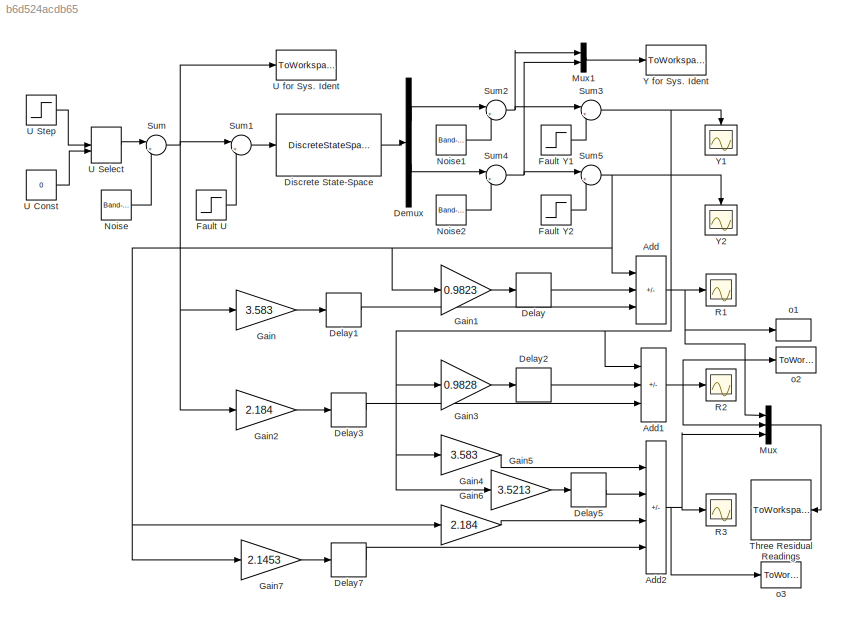
MODEL slx_b6d524acdb65
KIND model
CONFIG AbsTol = auto
CONFIG EnableMultiTasking = on
CONFIG FixedStep = 0.025
CONFIG MaxStep = auto
CONFIG MinStep = auto
CONFIG RelTol = 1e-3
CONFIG SampleTimeConstraint = Unconstrained
CONFIG SolverName = ode5
CONFIG StartTime = 0.0
CONFIG StopTime = 15
BLOCK [Sum] Add
  IconShape = rectangular
  Inputs = +--
BLOCK [Sum] Add1
  IconShape = rectangular
  Inputs = +--
BLOCK [Sum] Add2
  IconShape = rectangular
  Inputs = +--+
BLOCK [Delay] Delay
  DelayLength = 1
  InitialCondition = 0
  InputPortMap = u0
BLOCK [Delay] Delay1
  DelayLength = 1
  InitialCondition = 0
  InputPortMap = u0
BLOCK [Delay] Delay2
  DelayLength = 1
  InitialCondition = 0
  InputPortMap = u0
BLOCK [Delay] Delay3
  DelayLength = 1
  InitialCondition = 0
  InputPortMap = u0
BLOCK [Delay] Delay5
  DelayLength = 1
  InitialCondition = 0
  InputPortMap = u0
BLOCK [Delay] Delay7
  DelayLength = 1
  InitialCondition = 0
  InputPortMap = u0
BLOCK [Demux] Demux
  DisplayOption = none
  Outputs = 2
BLOCK [DiscreteStateSpace] Discrete State-Space
  A = [0.9769 0.0038;\n0.0936 0.9225]
  B = [2.1521;\n3.8186]
  C = [1 0; 0 1]
  D = [0;0]
  SampleTime = 0.025
BLOCK [Step] Fault U
  After = 0
  SampleTime = 0
  Time = 3
BLOCK [Step] Fault Y1
  After = 5
  SampleTime = 0
  Time = 3
BLOCK [Step] Fault Y2
  After = 5
  SampleTime = 0
  Time = 3
BLOCK [Gain] Gain
  Gain = 3.583
BLOCK [Gain] Gain1
  Gain = 0.9823
BLOCK [Gain] Gain2
  Gain = 2.184
BLOCK [Gain] Gain3
  Gain = 0.9828
BLOCK [Gain] Gain4
  Gain = 3.583
BLOCK [Gain] Gain5
  Gain = 3.5213
BLOCK [Gain] Gain6
  Gain = 2.184
BLOCK [Gain] Gain7
  Gain = 2.1453
BLOCK [Mux] Mux
  DisplayOption = bar
  Inputs = 3
BLOCK [Mux] Mux1
  DisplayOption = bar
  Inputs = 2
BLOCK [Reference] Noise  REF=simulink/Sources/Band-Limited
White Noise
  SourceBlock = simulink/Sources/Band-Limited\nWhite Noise
  SourceType = Band-Limited White Noise.
BLOCK [Reference] Noise1  REF=simulink/Sources/Band-Limited
White Noise
  SourceBlock = simulink/Sources/Band-Limited\nWhite Noise
  SourceType = Band-Limited White Noise.
BLOCK [Reference] Noise2  REF=simulink/Sources/Band-Limited
White Noise
  SourceBlock = simulink/Sources/Band-Limited\nWhite Noise
  SourceType = Band-Limited White Noise.
BLOCK [Scope] R1
  Floating = off
  NumInputPorts = 1
  ScopeSpecificationString = Simulink.scopes.TimeScopeBlockCfg('CurrentConfiguration', extmgr.ConfigurationSet(extmgr.Configuration('Core','General UI',true),extmgr.Configuration('Core','Source UI',true),extmgr.Configuration('Sources','WiredSimulink',true,'DataLoggingVariableName','ScopeData1','DataLoggingSaveFormat','StructureWithTime','DataLoggingDecimation','1','DataLoggingDecimateData',true),extmgr.Configuration('Visuals'...<+1730ch>
BLOCK [Scope] R2
  Floating = off
  NumInputPorts = 1
  ScopeSpecificationString = Simulink.scopes.TimeScopeBlockCfg('CurrentConfiguration', extmgr.ConfigurationSet(extmgr.Configuration('Core','General UI',true),extmgr.Configuration('Core','Source UI',true),extmgr.Configuration('Sources','WiredSimulink',true,'DataLoggingVariableName','ScopeData3','DataLoggingSaveFormat','StructureWithTime','DataLoggingDecimation','1','DataLoggingDecimateData',true),extmgr.Configuration('Visuals'...<+1740ch>
BLOCK [Scope] R3
  Floating = off
  NumInputPorts = 1
  ScopeSpecificationString = Simulink.scopes.TimeScopeBlockCfg('CurrentConfiguration', extmgr.ConfigurationSet(extmgr.Configuration('Core','General UI',true),extmgr.Configuration('Core','Source UI',true),extmgr.Configuration('Sources','WiredSimulink',true,'DataLoggingVariableName','ScopeData1','DataLoggingSaveFormat','StructureWithTime','DataLoggingDecimation','1','DataLoggingDecimateData',true),extmgr.Configuration('Visuals'...<+1737ch>
BLOCK [Sum] Sum
  Inputs = |++
  SaturateOnIntegerOverflow = on
BLOCK [Sum] Sum1
  Inputs = |++
  SaturateOnIntegerOverflow = on
BLOCK [Sum] Sum2
  Inputs = |++
  SaturateOnIntegerOverflow = on
BLOCK [Sum] Sum3
  Inputs = |++
  SaturateOnIntegerOverflow = on
BLOCK [Sum] Sum4
  Inputs = |++
  SaturateOnIntegerOverflow = on
BLOCK [Sum] Sum5
  Inputs = |++
  SaturateOnIntegerOverflow = on
BLOCK [ToWorkspace] Three Residual Readings
  MaxDataPoints = inf
  SampleTime = 0.025
  VariableName = Rout1
BLOCK [Constant] U Const
  Value = 0
BLOCK [ManualSwitch] U Select 
  NameLocation = top
BLOCK [Step] U Step
  SampleTime = 0
BLOCK [ToWorkspace] U for Sys. Ident
  MaxDataPoints = inf
  SampleTime = 0.025
  VariableName = Uout
BLOCK [ToWorkspace] Y for Sys. Ident
  MaxDataPoints = inf
  SampleTime = 0.025
  VariableName = Yout
BLOCK [Scope] Y1
  Floating = off
  NameLocation = left
  NumInputPorts = 1
  ScopeSpecificationString = Simulink.scopes.TimeScopeBlockCfg('CurrentConfiguration', extmgr.ConfigurationSet(extmgr.Configuration('Core','General UI',true,'FigureColor',[0 0 0]),extmgr.Configuration('Core','Source UI',true),extmgr.Configuration('Sources','WiredSimulink',true,'DataLoggingSaveFormat','StructureWithTime','DataLoggingDecimation','1','DataLoggingDecimateData',true),extmgr.Configuration('Visuals','Time Domain',tr...<+1815ch>
BLOCK [Scope] Y2
  Floating = off
  NameLocation = left
  NumInputPorts = 1
  ScopeSpecificationString = Simulink.scopes.TimeScopeBlockCfg('CurrentConfiguration', extmgr.ConfigurationSet(extmgr.Configuration('Core','General UI',true),extmgr.Configuration('Core','Source UI',true),extmgr.Configuration('Sources','WiredSimulink',true,'DataLoggingVariableName','ScopeData2','DataLoggingSaveFormat','StructureWithTime','DataLoggingDecimation','1','DataLoggingDecimateData',true),extmgr.Configuration('Visuals'...<+1741ch>
BLOCK [ToWorkspace] o1
  MaxDataPoints = inf
  SampleTime = 0.025
  VariableName = R1
BLOCK [ToWorkspace] o2
  MaxDataPoints = inf
  SampleTime = 0.025
  VariableName = R2
BLOCK [ToWorkspace] o3
  MaxDataPoints = inf
  SampleTime = 0.025
  VariableName = R3
NET Add1:1 -> Mux:2, R2:1, o2:1
NET Add2:1 -> Mux:3, R3:1, o3:1
NET Add:1 -> Mux:1, R1:1, o1:1
LINE Delay1:1 -> Add:3
LINE Delay2:1 -> Add1:2
LINE Delay3:1 -> Add1:3
LINE Delay5:1 -> Add2:2
LINE Delay7:1 -> Add2:4
LINE Delay:1 -> Add:2
LINE Demux:1 -> Sum2:1
LINE Demux:2 -> Sum4:1
LINE Discrete State-Space:1 -> Demux:1
LINE Fault U:1 -> Sum1:2
LINE Fault Y1:1 -> Sum3:2
LINE Fault Y2:1 -> Sum5:2
LINE Gain1:1 -> Delay:1
LINE Gain2:1 -> Delay3:1
LINE Gain3:1 -> Delay2:1
LINE Gain4:1 -> Add2:1
LINE Gain5:1 -> Delay5:1
LINE Gain6:1 -> Add2:3
LINE Gain7:1 -> Delay7:1
LINE Gain:1 -> Delay1:1
LINE Mux1:1 -> Y for Sys. Ident:1
LINE Mux:1 -> Three Residual Readings:1
LINE Noise1:1 -> Sum2:2
LINE Noise2:1 -> Sum4:2
LINE Noise:1 -> Sum:2
LINE Sum1:1 -> Discrete State-Space:1
NET Sum2:1 -> Mux1:1, Sum3:1
NET Sum3:1 -> Add1:1, Gain3:1, Gain4:1, Gain5:1, Y1:1
NET Sum4:1 -> Mux1:2, Sum5:1
NET Sum5:1 -> Add:1, Gain1:1, Gain6:1, Gain7:1, Y2:1
NET Sum:1 -> Gain2:1, Gain:1, Sum1:1, U for Sys. Ident:1
LINE U Const:1 -> U Select :2
LINE U Select :1 -> Sum:1
LINE U Step:1 -> U Select :1
note: NET lines group one-source signal fan-out (src -> all destinations, sorted); 1:1 wires keep LINE
